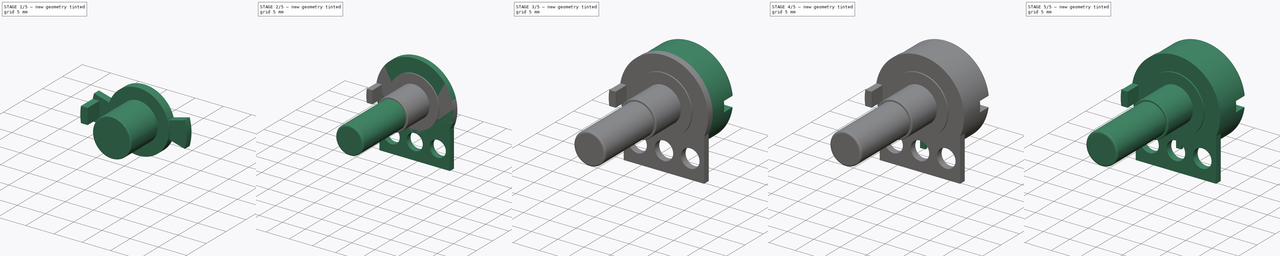
[diagram: build sequence overview — one tinted view per stage of 5, left to right]
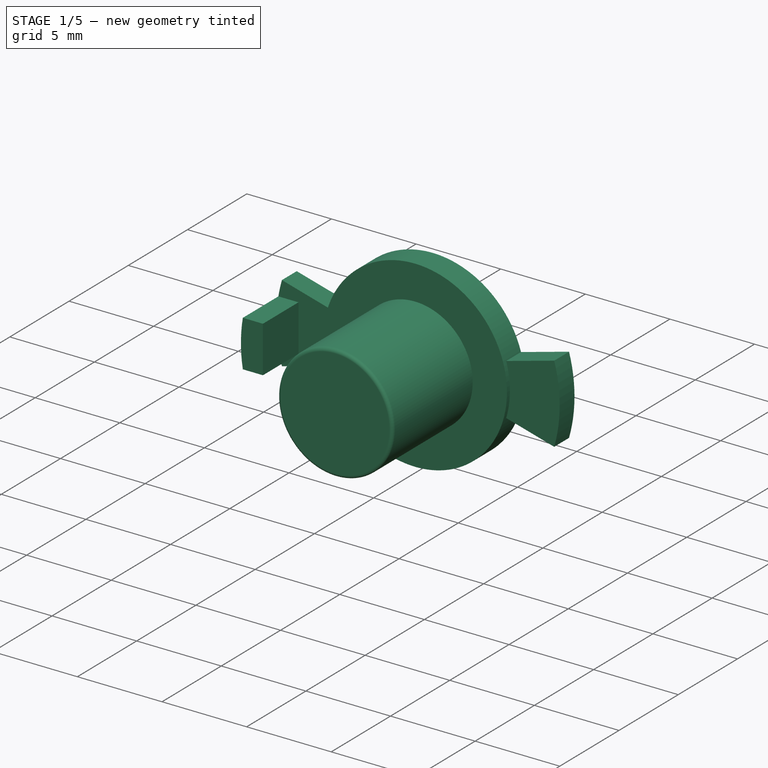
[diagram: stage 1 of 5 — iso view after this stage's code; geometry added in this stage tinted green]
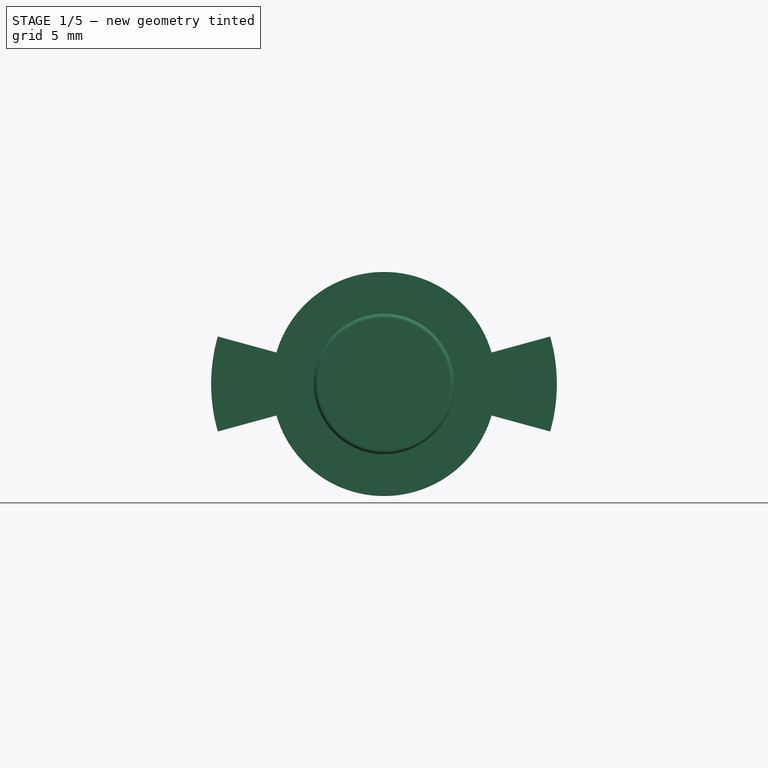
[diagram: stage 1 of 5 — front view after this stage's code; geometry added in this stage tinted green]
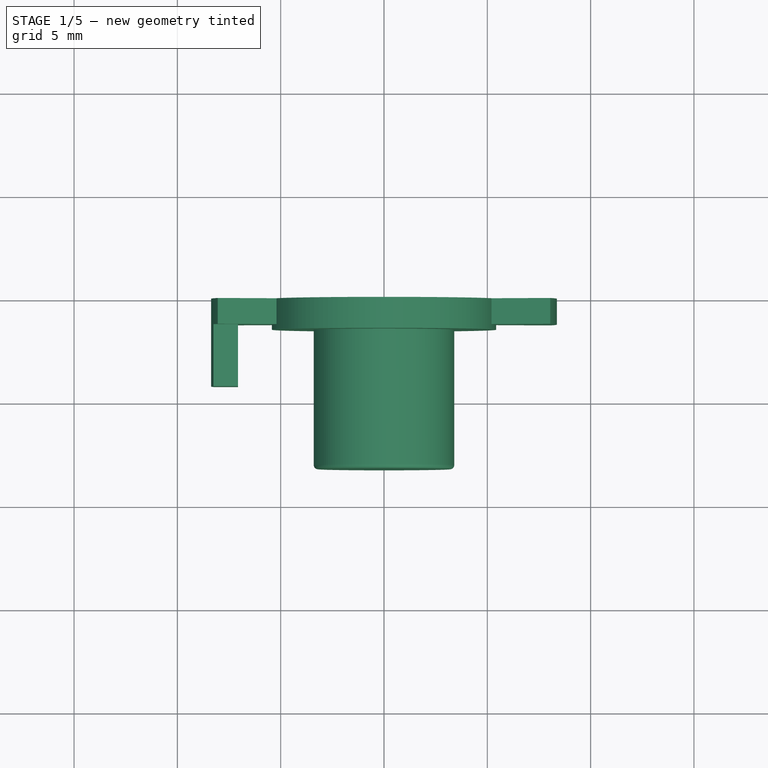
[diagram: stage 1 of 5 — top view after this stage's code; geometry added in this stage tinted green]
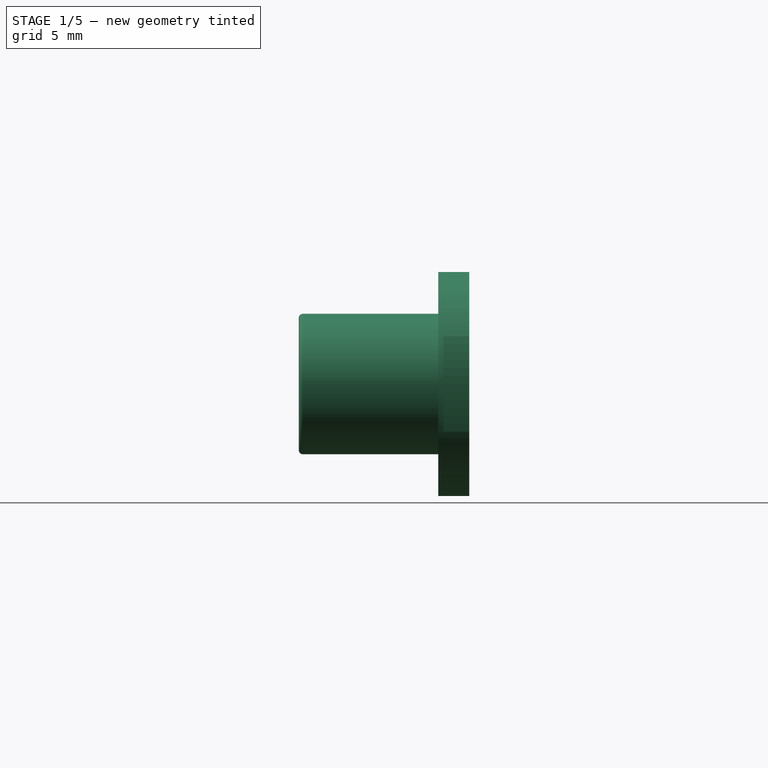
[diagram: stage 1 of 5 — right view after this stage's code; geometry added in this stage tinted green]
FCSTD DOCUMENT  (FreeCAD 0.18R4 (GitTag))
Label: Pot
License: All rights reserved
LicenseURL: http://en.wikipedia.org/wiki/All_rights_reserved
objects: Sketcher::SketchObject×16, PartDesign::Pad×14, PartDesign::Body×9, PartDesign::Fillet×6, PartDesign::Pocket×2, Part::Cut×1, App::Part×1
note: 64 computed .brp shape members not serialized (recipe doc carries the construction recipe); baked Part::Feature solids carry a one-line shape summary decoded from their .brp

FEATURE [PartDesign::Body] Body001  label="PCB"
  Group = -> [Sketch002,Pad001,Sketch010,Pocket001]
  Origin = -> Origin002
  Tip = -> Pocket001
FEATURE [Sketcher::SketchObject] Sketch011
  MapMode = 5
  Placement = pos=(0,0,0) rot=(1,0,0;1.5708rad)
  Support = -> [XZ_Plane007]
  sketch-geometry (1):
    g0: Circle CenterX=0 CenterY=0 CenterZ=0 NormalX=0 NormalY=0 NormalZ=1 AngleXU=0 Radius=3.4
  constraints (2):
    c: Diameter(g0) = 6.8
    c: Coincident(g0,g-1)
FEATURE [PartDesign::Pad] Pad009
  Length = 8.25
  Length2 = 100
  Placement = pos=(0,0,0) rot=(1,0,0;1.5708rad)
  Profile = -> Sketch011
  Type = 0
FEATURE [PartDesign::Fillet] Fillet004
  Base = -> Pad009 [Face3]
  BaseFeature = -> Pad009
  Placement = pos=(0,0,0) rot=(1,0,0;1.5708rad)
  Radius = 0.2
FEATURE [PartDesign::Body] Body006  label="Shaft"
  Group = -> [Sketch011,Pad009,Fillet004,Sketch012,Pad010,Fillet005]
  Origin = -> Origin007
  Placement = pos=(0,-1.25,0) rot=(0,0,1;0rad)
  Tip = -> Fillet005
FEATURE [Sketcher::SketchObject] Sketch013
  MapMode = 5
  Placement = pos=(0,0,0) rot=(1,0,0;1.5708rad)
  Support = -> [XZ_Plane008]
  sketch-geometry (1):
    g0: Circle CenterX=0 CenterY=0 CenterZ=0 NormalX=0 NormalY=0 NormalZ=1 AngleXU=0 Radius=5.425
  constraints (2):
    c: Diameter(g0) = 10.85
    c: Coincident(g0,g-1)
FEATURE [PartDesign::Pad] Pad011
  Length = 1.5
  Length2 = 100
  Placement = pos=(0,0,0) rot=(1,0,0;1.5708rad)
  Profile = -> Sketch013
  Type = 0
FEATURE [PartDesign::Body] Body007  label="Round stuff"
  Group = -> [Sketch013,Pad011]
  Origin = -> Origin008
  Placement = pos=(0,-1.25,0) rot=(0,0,1;0rad)
  Tip = -> Pad011
FEATURE [Sketcher::SketchObject] Sketch014
  MapMode = 5
  Placement = pos=(0,0,0) rot=(1,0,0;1.5708rad)
  Support = -> [XZ_Plane009]
  sketch-geometry (6):
    g0: LineSegment StartX=-8.0446 StartY=2.3 StartZ=0 EndX=0 EndY=0.1 EndZ=0
    g1: LineSegment StartX=0 StartY=0.1 StartZ=0 EndX=8.0446 EndY=2.3 EndZ=0
    g2: LineSegment StartX=8.0446 StartY=-2.3 StartZ=0 EndX=0 EndY=-0.1 EndZ=0
    g3: LineSegment StartX=0 StartY=-0.1 StartZ=0 EndX=-8.0446 EndY=-2.3 EndZ=0
    g4: ArcOfCircle CenterX=-0.0083879 CenterY=-2.8e-15 CenterZ=0 NormalX=0 NormalY=0 NormalZ=1 AngleXU=0 Radius=8.375 StartAngle=6.00498 EndAngle=6.56139
    g5: ArcOfCircle CenterX=0.0083879 CenterY=-2.5e-15 CenterZ=0 NormalX=0 NormalY=0 NormalZ=1 AngleXU=0 Radius=8.375 StartAngle=2.86339 EndAngle=3.41979
  constraints (19):
    c: Coincident(g0,g1)
    c: Coincident(g2,g3)
    c: Equal(g1,g0)
    c: Equal(g2,g3)
    c: Equal(g0,g3)
    c: Vertical(g0,g3)
    c: DistanceY(g3,g0) = 4.6
    c: Horizontal(g1,g0)
    c: Horizontal(g2,g3)
    c: Coincident(g4,g1)
    c: Distance(g0) = 8.34
    c: Diameter(g4) = 16.75
    c: Diameter(g5) = 16.75
    c: Coincident(g5,g0)
    c: Coincident(g3,g5)
    c: Coincident(g2,g4)
    c: Vertical(g2,g0)
    c: Symmetric(g0,g2,g-1)
    c: DistanceY(g-1,g0) = 0.1
FEATURE [PartDesign::Pad] Pad012
  Length = 1.25
  Length2 = 100
  Placement = pos=(0,0,0) rot=(1,0,0;1.5708rad)
  Profile = -> Sketch014
  Type = 0
FEATURE [Sketcher::SketchObject] Sketch015
  ExternalGeometry = -> [Pad012]
  MapMode = 5
  Placement = pos=(0,-1.25,8e-16) rot=(1,0,0;1.5708rad)
  Support = -> [Pad012]
  sketch-geometry (6):
    g0: LineSegment StartX=-8.25297 StartY=1.375 StartZ=0 EndX=-7.06661 EndY=1.375 EndZ=0
    g1: LineSegment StartX=-7.06661 StartY=-1.375 StartZ=0 EndX=-8.25297 EndY=-1.375 EndZ=0
    g2: ArcOfCircle CenterX=0.0083879 CenterY=-1e-14 CenterZ=0 NormalX=0 NormalY=0 NormalZ=1 AngleXU=0 Radius=8.375 StartAngle=2.97667 EndAngle=3.30652
    g3: LineSegment StartX=-7.06661 StartY=1.375 StartZ=0 EndX=-7.06661 EndY=0 EndZ=0
    g4: LineSegment StartX=-7.06661 StartY=-1.375 StartZ=0 EndX=-7.06661 EndY=0 EndZ=0
    g5: GeomPoint X=-8.36661 Y=0 Z=0
  constraints (19):
    c: Coincident(g4,g3)
    c: Coincident(g4,g1)
    c: Coincident(g3,g0)
    c: Vertical(g3)
    c: Vertical(g4)
    c: Equal(g3,g4)
    c: Horizontal(g3,g-1)
    c: Horizontal(g1)
    c: Horizontal(g0)
    c: Coincident(g2,g1)
    c: Coincident(g0,g2)
    c: PointOnObject(g0,g-3)
    c: PointOnObject(g1,g-3)
    c: Diameter(g-3) = 16.75
    c: Diameter(g2) = 16.75
    c: DistanceY(g1,g0) = 2.75
    c: Horizontal(g5,g3)
    c: PointOnObject(g5,g2)
    c: DistanceX(g5,g1) = 1.3
FEATURE [PartDesign::Pad] Pad013
  BaseFeature = -> Pad012
  Length = 3
  Length2 = 100
  Placement = pos=(0,0,0) rot=(1,0,0;1.5708rad)
  Profile = -> Sketch015
  Type = 0
FEATURE [PartDesign::Body] Body008  label="Ears"
  Group = -> [Sketch014,Pad012,Sketch015,Pad013]
  Origin = -> Origin009
  Placement = pos=(0,-1.25,0) rot=(0,0,1;0rad)
  Tip = -> Pad013
FEATURE [App::Part] Part  label="Pot"
  Group = -> [Body,Body001,Body002,Body003,Body004,Body005,Cut,Body006,Body007,Body008]
  Origin = -> Origin
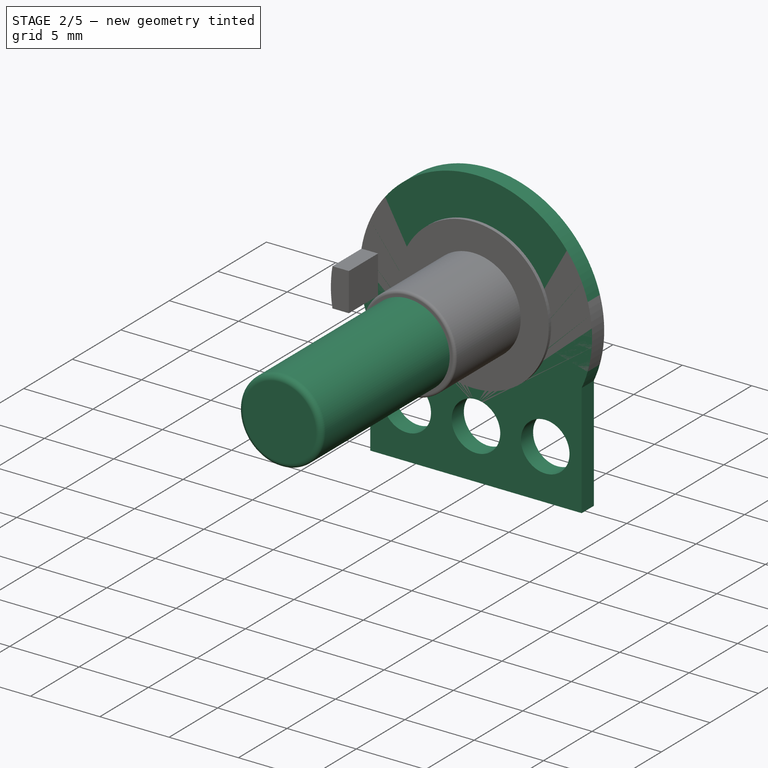
[diagram: stage 2 of 5 — iso view after this stage's code; geometry added in this stage tinted green]
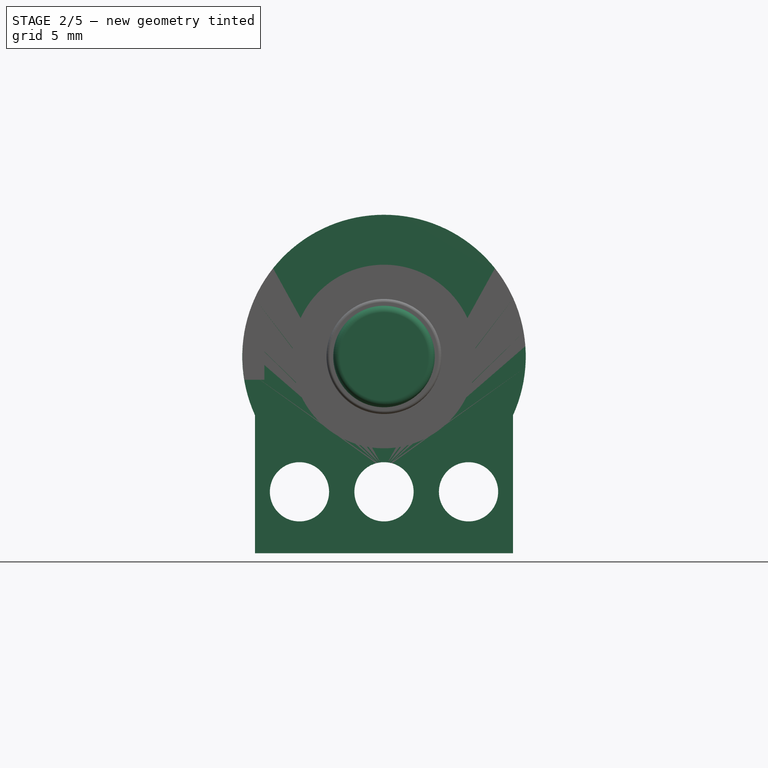
[diagram: stage 2 of 5 — front view after this stage's code; geometry added in this stage tinted green]
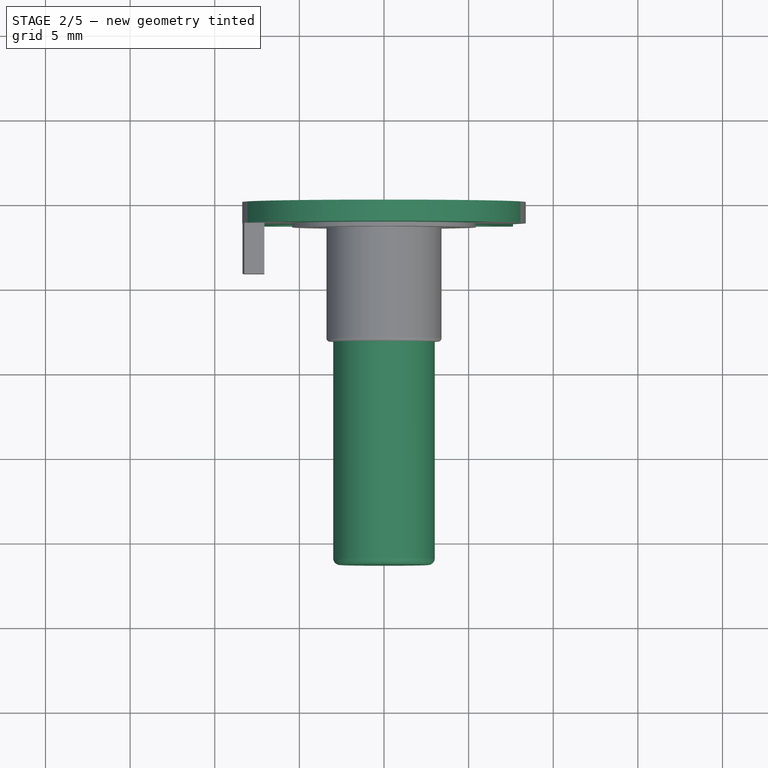
[diagram: stage 2 of 5 — top view after this stage's code; geometry added in this stage tinted green]
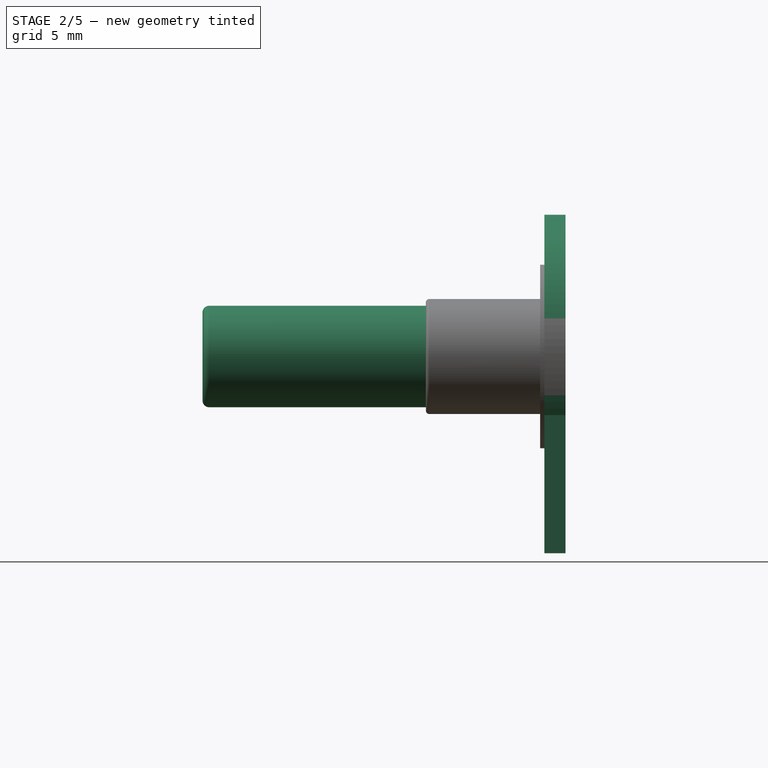
[diagram: stage 2 of 5 — right view after this stage's code; geometry added in this stage tinted green]
FEATURE [PartDesign::Body] Body  label="Cover"
  Group = -> [Sketch,Pad,Sketch001,Pocket,Fillet]
  Origin = -> Origin001
  Placement = pos=(0,6,0) rot=(0,0,1;0rad)
  Tip = -> Fillet
FEATURE [Sketcher::SketchObject] Sketch002
  MapMode = 5
  Placement = pos=(0,0,0) rot=(1,0,0;1.5708rad)
  Support = -> [XZ_Plane002]
  sketch-geometry (5):
    g0: LineSegment StartX=-7.625 StartY=-3.4641 StartZ=0 EndX=-7.625 EndY=-11.625 EndZ=0
    g1: LineSegment StartX=-7.625 StartY=-11.625 StartZ=0 EndX=7.625 EndY=-11.625 EndZ=0
    g2: LineSegment StartX=7.625 StartY=-11.625 StartZ=0 EndX=7.625 EndY=-3.4641 EndZ=0
    g3: ArcOfCircle CenterX=0 CenterY=0 CenterZ=0 NormalX=0 NormalY=0 NormalZ=1 AngleXU=0 Radius=8.375 StartAngle=5.85675 EndAngle=9.85121
    g4: GeomPoint X=0 Y=8.375 Z=0
  constraints (14):
    c: Coincident(g0,g1)
    c: Coincident(g1,g2)
    c: Diameter(g3) = 16.75
    c: Vertical(g0)
    c: Vertical(g2)
    c: Horizontal(g1)
    c: Equal(g2,g0)
    c: Coincident(g3,g0)
    c: Coincident(g3,g2)
    c: DistanceX(g1,g1) = 15.25
    c: Coincident(g-1,g3)
    c: DistanceX(g3,g4) = 0
    c: PointOnObject(g4,g3)
    c: DistanceY(g1,g4) = 20
FEATURE [PartDesign::Pad] Pad001
  Length = 1.25
  Length2 = 100
  Placement = pos=(0,0,0) rot=(1,0,0;1.5708rad)
  Profile = -> Sketch002
  Type = 0
FEATURE [Sketcher::SketchObject] Sketch010
  ExternalGeometry = -> [Pad001]
  MapMode = 5
  Placement = pos=(0,-1.25,8e-16) rot=(1,0,0;1.5708rad)
  Support = -> [Pad001]
  sketch-geometry (3):
    g0: Circle CenterX=-4.995 CenterY=-7.995 CenterZ=0 NormalX=0 NormalY=0 NormalZ=1 AngleXU=0 Radius=1.75
    g1: Circle CenterX=0 CenterY=-7.995 CenterZ=0 NormalX=0 NormalY=0 NormalZ=1 AngleXU=0 Radius=1.75
    g2: Circle CenterX=4.995 CenterY=-7.995 CenterZ=0 NormalX=0 NormalY=0 NormalZ=1 AngleXU=0 Radius=1.75
  constraints (8):
    c: Diameter(g0) = 3.5
    c: DistanceY(g-4,g0) = 3.63
    c: Equal(g0,g1) = 3.5
    c: DistanceX(g1,g-1) = 0
    c: Horizontal(g1,g0)
    c: Equal(g0,g2) = 3.5
    c: Symmetric(g2,g0,g1)
    c: DistanceX(g-4,g0) = 2.63
FEATURE [PartDesign::Pocket] Pocket001
  BaseFeature = -> Pad001
  Length = 5
  Length2 = 100
  Placement = pos=(0,0,0) rot=(1,0,0;1.5708rad)
  Profile = -> Sketch010
  Type = 0
FEATURE [Sketcher::SketchObject] Sketch012
  MapMode = 5
  Placement = pos=(0,-8.25,5.5e-15) rot=(1,0,0;1.5708rad)
  Support = -> [Fillet004]
  sketch-geometry (1):
    g0: Circle CenterX=0 CenterY=0 CenterZ=0 NormalX=0 NormalY=0 NormalZ=1 AngleXU=0 Radius=3
  constraints (2):
    c: Diameter(g0) = 6
    c: Coincident(g0,g-1)
FEATURE [PartDesign::Pad] Pad010
  BaseFeature = -> Fillet004
  Length = 13.2
  Length2 = 100
  Placement = pos=(0,0,0) rot=(1,0,0;1.5708rad)
  Profile = -> Sketch012
  Type = 0
FEATURE [PartDesign::Fillet] Fillet005
  Base = -> Pad010 [Face6]
  BaseFeature = -> Pad010
  Placement = pos=(0,0,0) rot=(1,0,0;1.5708rad)
  Radius = 0.4
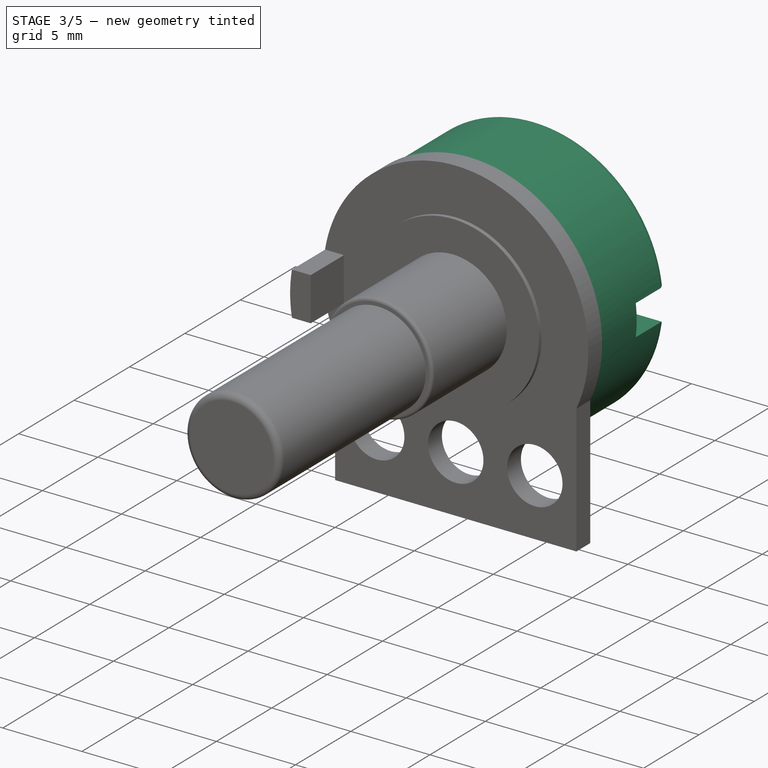
[diagram: stage 3 of 5 — iso view after this stage's code; geometry added in this stage tinted green]
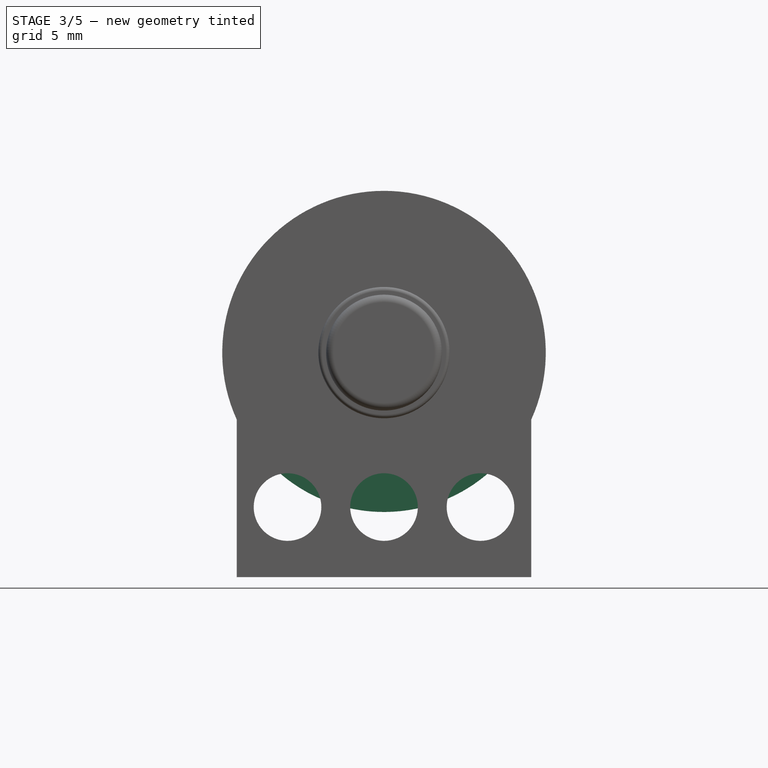
[diagram: stage 3 of 5 — front view after this stage's code; geometry added in this stage tinted green]
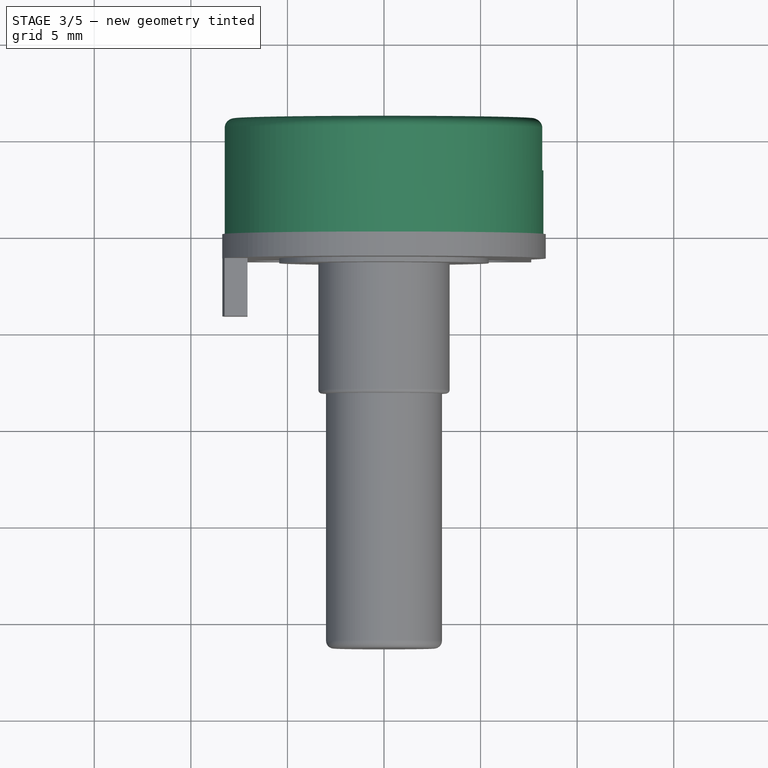
[diagram: stage 3 of 5 — top view after this stage's code; geometry added in this stage tinted green]
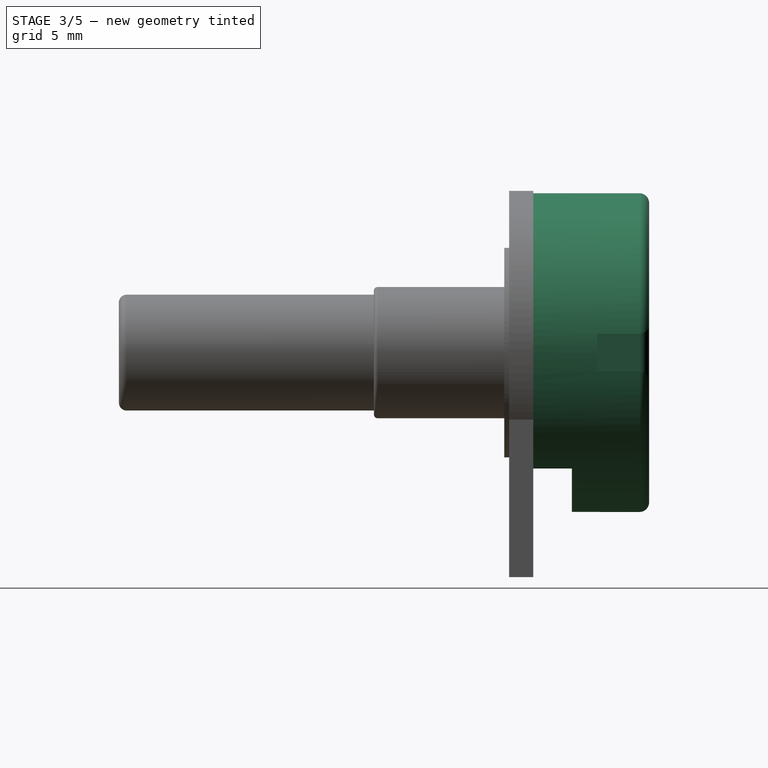
[diagram: stage 3 of 5 — right view after this stage's code; geometry added in this stage tinted green]
FEATURE [Sketcher::SketchObject] Sketch
  MapMode = 5
  Placement = pos=(0,0,0) rot=(1,0,0;1.5708rad)
  Support = -> [XZ_Plane001]
  sketch-geometry (1):
    g0: Circle CenterX=0 CenterY=0 CenterZ=0 NormalX=0 NormalY=0 NormalZ=1 AngleXU=0 Radius=8.25
  constraints (2):
    c: Diameter(g0) = 16.5
    c: Coincident(g0,g-1)
FEATURE [PartDesign::Pad] Pad
  Length = 6
  Length2 = 100
  Placement = pos=(0,0,0) rot=(1,0,0;1.5708rad)
  Profile = -> Sketch
  Type = 0
FEATURE [Sketcher::SketchObject] Sketch001
  ExternalGeometry = -> [Pad]
  MapMode = 5
  Placement = pos=(0,0,0) rot=(-1,0,0;1.5708rad)
  Support = -> [Pad]
  sketch-geometry (5):
    g0: LineSegment StartX=6.35 StartY=0.975 StartZ=0 EndX=8.25 EndY=0.975 EndZ=0
    g1: LineSegment StartX=8.25 StartY=0.975 StartZ=0 EndX=8.25 EndY=-0.975 EndZ=0
    g2: LineSegment StartX=8.25 StartY=-0.975 StartZ=0 EndX=6.35 EndY=-0.975 EndZ=0
    g3: LineSegment StartX=6.35 StartY=0.975 StartZ=0 EndX=6.35 EndY=0 EndZ=0
    g4: LineSegment StartX=6.35 StartY=-0.975 StartZ=0 EndX=6.35 EndY=0 EndZ=0
  constraints (14):
    c: Coincident(g0,g1)
    c: Coincident(g1,g2)
    c: Horizontal(g0)
    c: Horizontal(g2)
    c: Vertical(g1)
    c: Coincident(g4,g3)
    c: Coincident(g3,g0)
    c: Coincident(g4,g2)
    c: Vertical(g4)
    c: Symmetric(g0,g2,g3)
    c: DistanceY(g1,g1) = 1.95
    c: DistanceX(g0,g0) = 1.9
    c: Tangent(g1,g-3)
    c: DistanceY(g-3,g3) = 0
FEATURE [PartDesign::Pocket] Pocket
  BaseFeature = -> Pad
  Length = 2.7
  Length2 = 100
  Placement = pos=(0,0,0) rot=(1,0,0;1.5708rad)
  Profile = -> Sketch001
  Type = 0
FEATURE [PartDesign::Fillet] Fillet
  Base = -> Pocket [Face4]
  BaseFeature = -> Pocket
  Placement = pos=(0,0,0) rot=(1,0,0;1.5708rad)
  Radius = 0.5
FEATURE [PartDesign::Body] Body004  label="Pin 3"
  Group = -> [Sketch007,Pad006,Sketch008,Pad007,Fillet003]
  Origin = -> Origin005
  Placement = pos=(5,0.5,-8) rot=(0,0,1;0rad)
  Tip = -> Fillet003
FEATURE [Sketcher::SketchObject] Sketch009
  MapMode = 5
  Support = -> [XY_Plane006]
  sketch-geometry (4):
    g0: LineSegment StartX=-7 StartY=2 StartZ=0 EndX=7 EndY=2 EndZ=0
    g1: LineSegment StartX=7 StartY=2 StartZ=0 EndX=7 EndY=0 EndZ=0
    g2: LineSegment StartX=7 StartY=0 StartZ=0 EndX=-7 EndY=0 EndZ=0
    g3: LineSegment StartX=-7 StartY=0 StartZ=0 EndX=-7 EndY=2 EndZ=0
  constraints (11):
    c: Coincident(g0,g1)
    c: Coincident(g1,g2)
    c: Coincident(g2,g3)
    c: Coincident(g3,g0)
    c: Horizontal(g0)
    c: Horizontal(g2)
    c: Vertical(g1)
    c: Vertical(g3)
    c: DistanceX(g0,g0) = 14
    c: DistanceY(g3,g3) = 2
    c: Symmetric(g1,g2,g-1)
FEATURE [PartDesign::Pad] Pad008
  Length = 3
  Length2 = 100
  Profile = -> Sketch009
  Type = 0
FEATURE [PartDesign::Body] Body005  label="Hole"
  Group = -> [Sketch009,Pad008]
  Origin = -> Origin006
  Placement = pos=(0,0,-9) rot=(0,0,1;0rad)
  Tip = -> Pad008
FEATURE [Part::Cut] Cut  label="Metal case"
  Base = -> Body
  Tool = -> Body005
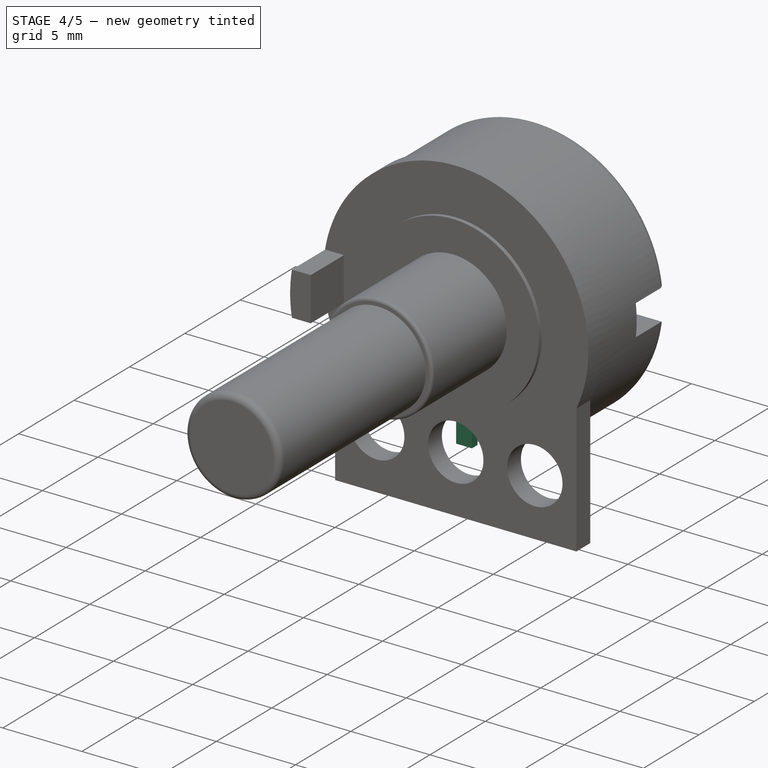
[diagram: stage 4 of 5 — iso view after this stage's code; geometry added in this stage tinted green]
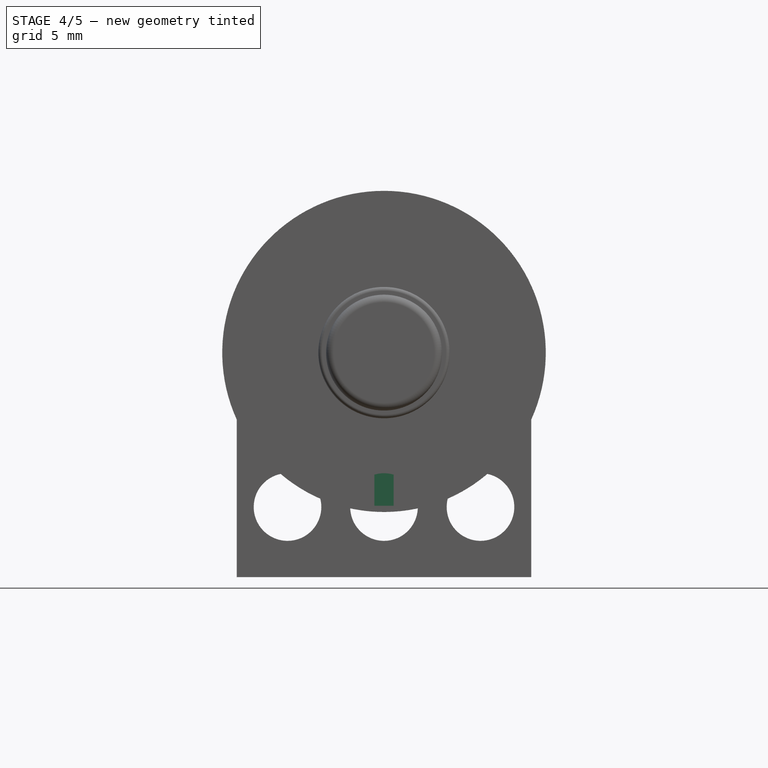
[diagram: stage 4 of 5 — front view after this stage's code; geometry added in this stage tinted green]
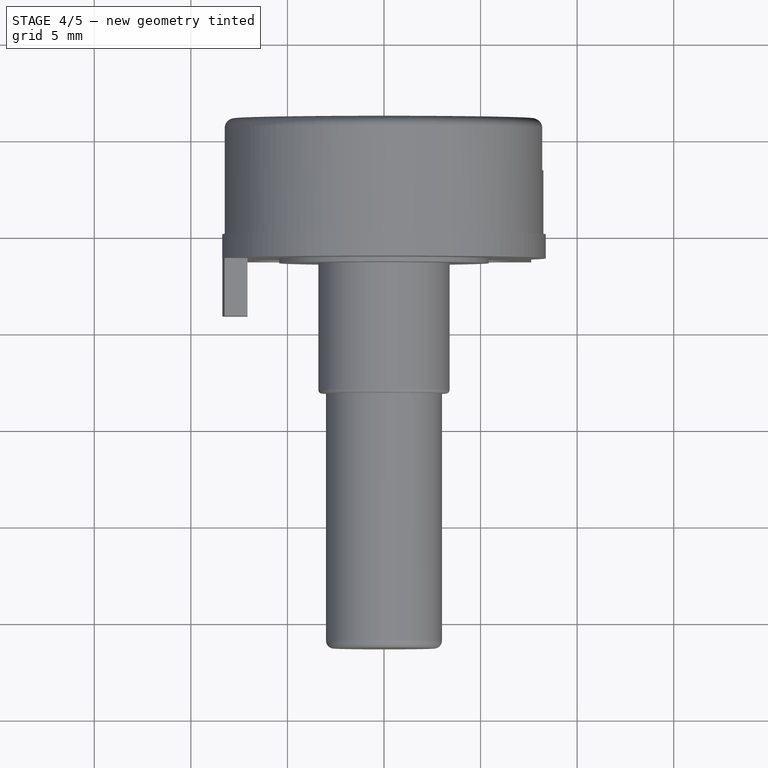
[diagram: stage 4 of 5 — top view after this stage's code; geometry added in this stage tinted green]
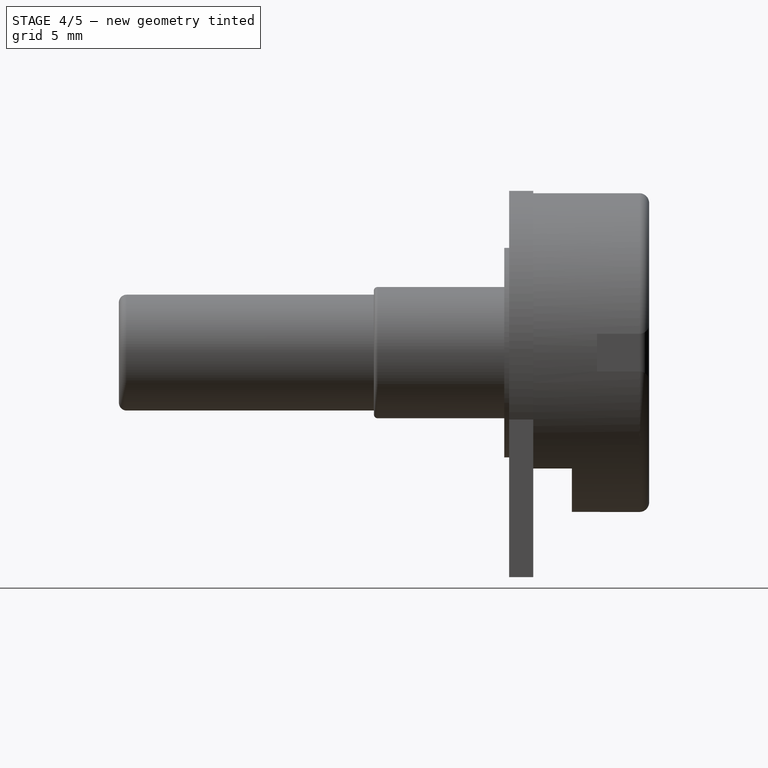
[diagram: stage 4 of 5 — right view after this stage's code; geometry added in this stage tinted green]
FEATURE [PartDesign::Body] Body002  label="Pin 1"
  Group = -> [Sketch003,Pad002,Sketch004,Pad003,Fillet001]
  Origin = -> Origin003
  Placement = pos=(-5,0.5,-8) rot=(0,0,1;0rad)
  Tip = -> Fillet001
FEATURE [Sketcher::SketchObject] Sketch005
  MapMode = 5
  Placement = pos=(0,0,0) rot=(1,0,0;1.5708rad)
  Support = -> [XZ_Plane004]
  sketch-geometry (10):
    g0: LineSegment StartX=1.775 StartY=-2e-16 StartZ=0 EndX=1.775 EndY=-4.225 EndZ=0
    g1: LineSegment StartX=1.775 StartY=-4.225 StartZ=0 EndX=0.5 EndY=-3.925 EndZ=0
    g2: LineSegment StartX=0.5 StartY=-3.925 StartZ=0 EndX=0.5 EndY=-7.925 EndZ=0
    g3: LineSegment StartX=0.5 StartY=-7.925 StartZ=0 EndX=-0.5 EndY=-7.925 EndZ=0
    g4: LineSegment StartX=-0.5 StartY=-7.925 StartZ=0 EndX=-0.5 EndY=-3.925 EndZ=0
    g5: LineSegment StartX=-0.5 StartY=-3.925 StartZ=0 EndX=-1.775 EndY=-4.225 EndZ=0
    g6: LineSegment StartX=-1.775 StartY=-4.225 StartZ=0 EndX=-1.775 EndY=0 EndZ=0
    g7: ArcOfCircle CenterX=0 CenterY=0 CenterZ=0 NormalX=0 NormalY=0 NormalZ=1 AngleXU=0 Radius=1.775 StartAngle=0 EndAngle=3.14159
    g8: GeomPoint X=0 Y=1.775 Z=0
    g9: Circle CenterX=0 CenterY=0 CenterZ=0 NormalX=0 NormalY=0 NormalZ=1 AngleXU=0 Radius=1.15
  constraints (26):
    c: Coincident(g0,g1)
    c: Coincident(g1,g2)
    c: Coincident(g2,g3)
    c: Coincident(g3,g4)
    c: Coincident(g4,g5)
    c: Coincident(g5,g6)
    c: Vertical(g2)
    c: Vertical(g4)
    c: Vertical(g6)
    c: Vertical(g0)
    c: Horizontal(g3)
    c: DistanceX(g3,g3) = 1
    c: DistanceX(g5,g0) = 3.55
    c: Equal(g2,g4)
    c: Equal(g6,g0)
    c: Equal(g1,g5)
    c: Tangent(g7,g6) = 1.5708
    c: Tangent(g0,g7) = 1.5708
    c: DistanceX(g7,g8) = 0
    c: PointOnObject(g8,g7)
    c: DistanceY(g0,g8) = 6
    c: DistanceY(g2,g8) = 9.7
    c: DistanceY(g2,g2) = 4
    c: Coincident(g9,g7)
    c: Radius(g9) = 1.15
    c: Coincident(g7,g-1)
FEATURE [PartDesign::Pad] Pad004
  Length = 0.5
  Length2 = 100
  Placement = pos=(0,0,0) rot=(1,0,0;1.5708rad)
  Profile = -> Sketch005
  Type = 0
FEATURE [PartDesign::Body] Body003  label="Pin 2"
  Group = -> [Sketch005,Pad004,Sketch006,Pad005,Fillet002]
  Origin = -> Origin004
  Placement = pos=(0,0.5,-8) rot=(0,0,1;0rad)
  Tip = -> Fillet002
FEATURE [Sketcher::SketchObject] Sketch007
  MapMode = 5
  Placement = pos=(0,0,0) rot=(1,0,0;1.5708rad)
  Support = -> [XZ_Plane005]
  sketch-geometry (10):
    g0: LineSegment StartX=1.775 StartY=-2e-16 StartZ=0 EndX=1.775 EndY=-4.225 EndZ=0
    g1: LineSegment StartX=1.775 StartY=-4.225 StartZ=0 EndX=0.5 EndY=-3.925 EndZ=0
    g2: LineSegment StartX=0.5 StartY=-3.925 StartZ=0 EndX=0.5 EndY=-7.925 EndZ=0
    g3: LineSegment StartX=0.5 StartY=-7.925 StartZ=0 EndX=-0.5 EndY=-7.925 EndZ=0
    g4: LineSegment StartX=-0.5 StartY=-7.925 StartZ=0 EndX=-0.5 EndY=-3.925 EndZ=0
    g5: LineSegment StartX=-0.5 StartY=-3.925 StartZ=0 EndX=-1.775 EndY=-4.225 EndZ=0
    g6: LineSegment StartX=-1.775 StartY=-4.225 StartZ=0 EndX=-1.775 EndY=0 EndZ=0
    g7: ArcOfCircle CenterX=0 CenterY=0 CenterZ=0 NormalX=0 NormalY=0 NormalZ=1 AngleXU=0 Radius=1.775 StartAngle=0 EndAngle=3.14159
    g8: GeomPoint X=0 Y=1.775 Z=0
    g9: Circle CenterX=0 CenterY=0 CenterZ=0 NormalX=0 NormalY=0 NormalZ=1 AngleXU=0 Radius=1.15
  constraints (26):
    c: Coincident(g0,g1)
    c: Coincident(g1,g2)
    c: Coincident(g2,g3)
    c: Coincident(g3,g4)
    c: Coincident(g4,g5)
    c: Coincident(g5,g6)
    c: Vertical(g2)
    c: Vertical(g4)
    c: Vertical(g6)
    c: Vertical(g0)
    c: Horizontal(g3)
    c: DistanceX(g3,g3) = 1
    c: DistanceX(g5,g0) = 3.55
    c: Equal(g2,g4)
    c: Equal(g6,g0)
    c: Equal(g1,g5)
    c: Tangent(g7,g6) = 1.5708
    c: Tangent(g0,g7) = 1.5708
    c: DistanceX(g7,g8) = 0
    c: PointOnObject(g8,g7)
    c: DistanceY(g0,g8) = 6
    c: DistanceY(g2,g8) = 9.7
    c: DistanceY(g2,g2) = 4
    c: Coincident(g9,g7)
    c: Radius(g9) = 1.15
    c: Coincident(g7,g-1)
FEATURE [PartDesign::Pad] Pad006
  Length = 0.5
  Length2 = 100
  Placement = pos=(0,0,0) rot=(1,0,0;1.5708rad)
  Profile = -> Sketch007
  Type = 0
FEATURE [Sketcher::SketchObject] Sketch008
  ExternalGeometry = -> [Pad006]
  MapMode = 5
  Placement = pos=(0,-0.5,2e-16) rot=(1,0,0;1.5708rad)
  Support = -> [Pad006]
  sketch-geometry (2):
    g0: Circle CenterX=0 CenterY=0 CenterZ=0 NormalX=0 NormalY=0 NormalZ=1 AngleXU=0 Radius=1.775
    g1: Circle CenterX=0 CenterY=0 CenterZ=0 NormalX=0 NormalY=0 NormalZ=1 AngleXU=0 Radius=1.15
  constraints (4):
    c: Coincident(g0,g-1)
    c: Tangent(g-3,g0) = -1.5708
    c: Coincident(g1,g0)
    c: Tangent(g1,g-4)
FEATURE [PartDesign::Pad] Pad007
  BaseFeature = -> Pad006
  Length = 1.75
  Length2 = 100
  Placement = pos=(0,0,0) rot=(1,0,0;1.5708rad)
  Profile = -> Sketch008
  Type = 0
FEATURE [PartDesign::Fillet] Fillet003
  Base = -> Pad007 [Face13]
  BaseFeature = -> Pad007
  Placement = pos=(0,0,0) rot=(1,0,0;1.5708rad)
  Radius = 0.1
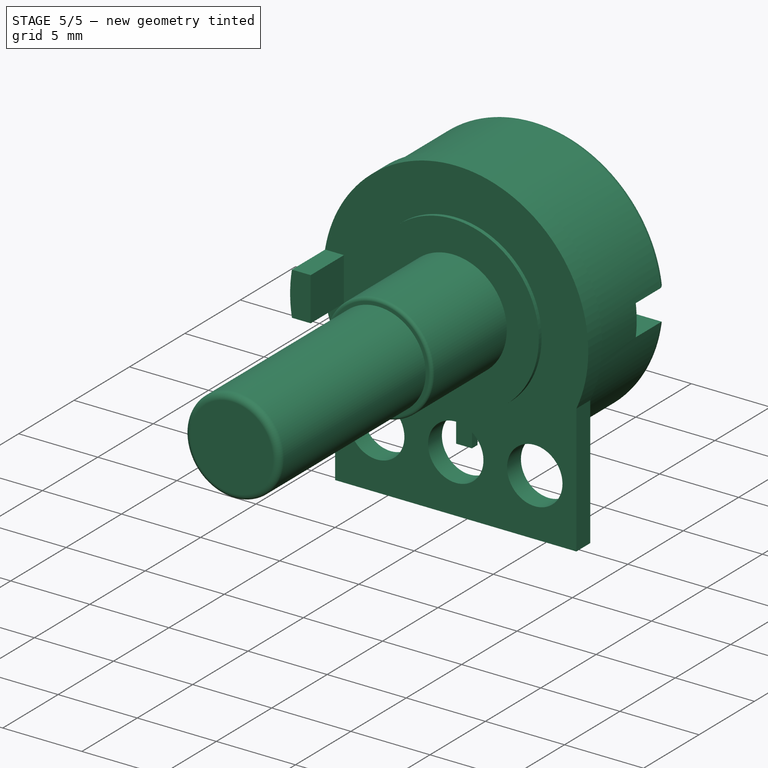
[diagram: stage 5 of 5 — iso view after this stage's code; geometry added in this stage tinted green]
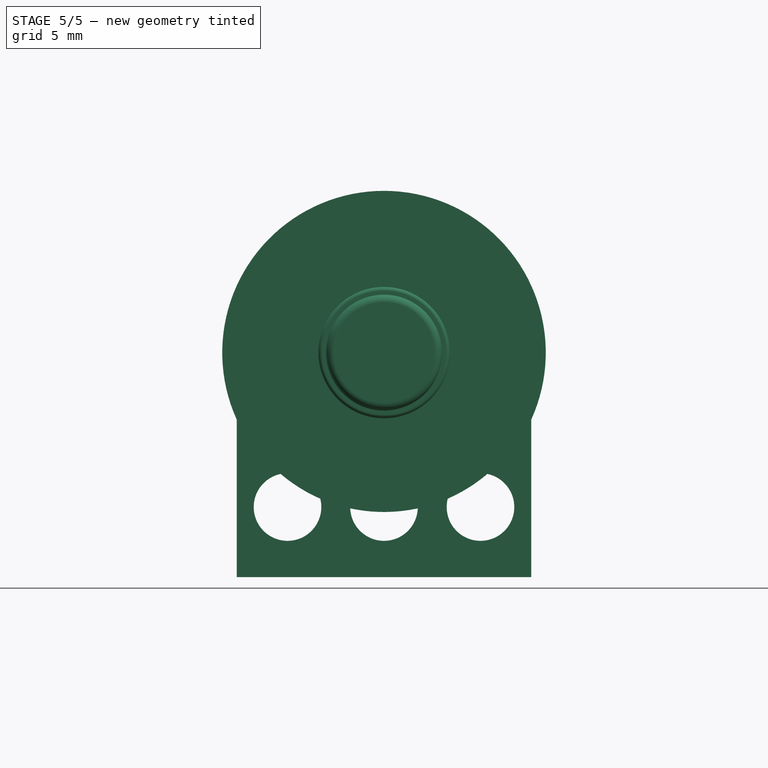
[diagram: stage 5 of 5 — front view after this stage's code; geometry added in this stage tinted green]
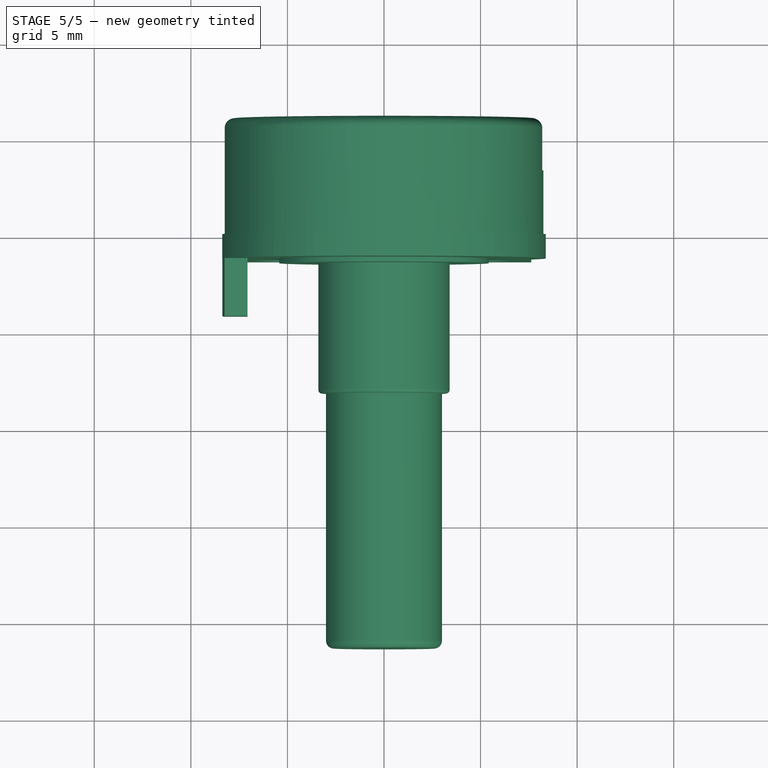
[diagram: stage 5 of 5 — top view after this stage's code; geometry added in this stage tinted green]
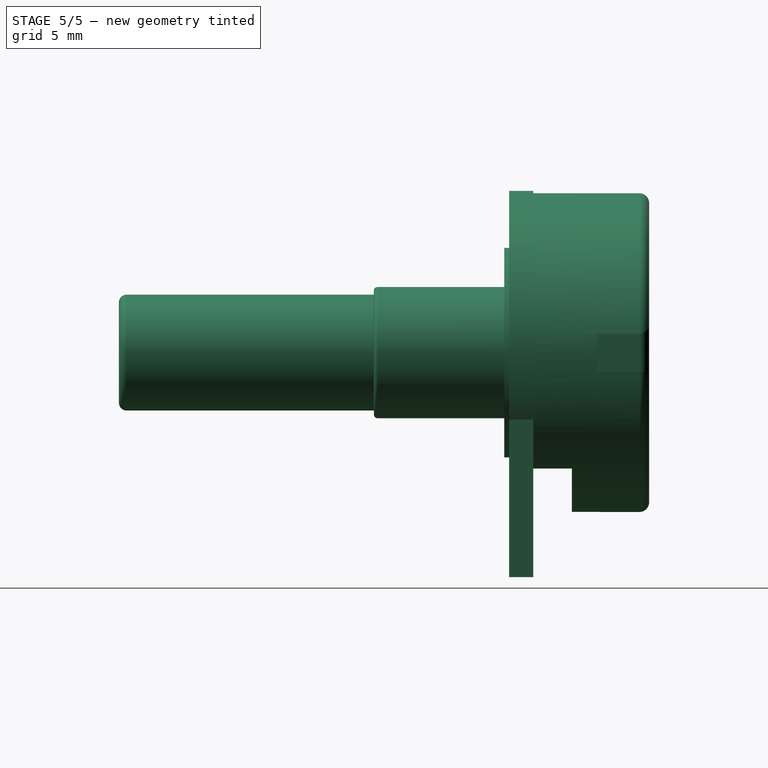
[diagram: stage 5 of 5 — right view after this stage's code; geometry added in this stage tinted green]
FEATURE [Sketcher::SketchObject] Sketch003
  MapMode = 5
  Placement = pos=(0,0,0) rot=(1,0,0;1.5708rad)
  Support = -> [XZ_Plane003]
  sketch-geometry (10):
    g0: LineSegment StartX=1.775 StartY=-2e-16 StartZ=0 EndX=1.775 EndY=-4.225 EndZ=0
    g1: LineSegment StartX=1.775 StartY=-4.225 StartZ=0 EndX=0.5 EndY=-3.925 EndZ=0
    g2: LineSegment StartX=0.5 StartY=-3.925 StartZ=0 EndX=0.5 EndY=-7.925 EndZ=0
    g3: LineSegment StartX=0.5 StartY=-7.925 StartZ=0 EndX=-0.5 EndY=-7.925 EndZ=0
    g4: LineSegment StartX=-0.5 StartY=-7.925 StartZ=0 EndX=-0.5 EndY=-3.925 EndZ=0
    g5: LineSegment StartX=-0.5 StartY=-3.925 StartZ=0 EndX=-1.775 EndY=-4.225 EndZ=0
    g6: LineSegment StartX=-1.775 StartY=-4.225 StartZ=0 EndX=-1.775 EndY=0 EndZ=0
    g7: ArcOfCircle CenterX=0 CenterY=0 CenterZ=0 NormalX=0 NormalY=0 NormalZ=1 AngleXU=0 Radius=1.775 StartAngle=0 EndAngle=3.14159
    g8: GeomPoint X=0 Y=1.775 Z=0
    g9: Circle CenterX=0 CenterY=0 CenterZ=0 NormalX=0 NormalY=0 NormalZ=1 AngleXU=0 Radius=1.15
  constraints (26):
    c: Coincident(g0,g1)
    c: Coincident(g1,g2)
    c: Coincident(g2,g3)
    c: Coincident(g3,g4)
    c: Coincident(g4,g5)
    c: Coincident(g5,g6)
    c: Vertical(g2)
    c: Vertical(g4)
    c: Vertical(g6)
    c: Vertical(g0)
    c: Horizontal(g3)
    c: DistanceX(g3,g3) = 1
    c: DistanceX(g5,g0) = 3.55
    c: Equal(g2,g4)
    c: Equal(g6,g0)
    c: Equal(g1,g5)
    c: Tangent(g7,g6) = 1.5708
    c: Tangent(g0,g7) = 1.5708
    c: DistanceX(g7,g8) = 0
    c: PointOnObject(g8,g7)
    c: DistanceY(g0,g8) = 6
    c: DistanceY(g2,g8) = 9.7
    c: DistanceY(g2,g2) = 4
    c: Coincident(g9,g7)
    c: Radius(g9) = 1.15
    c: Coincident(g7,g-1)
FEATURE [PartDesign::Pad] Pad002
  Length = 0.5
  Length2 = 100
  Placement = pos=(0,0,0) rot=(1,0,0;1.5708rad)
  Profile = -> Sketch003
  Type = 0
FEATURE [Sketcher::SketchObject] Sketch004
  ExternalGeometry = -> [Pad002]
  MapMode = 5
  Placement = pos=(0,-0.5,3e-16) rot=(1,0,0;1.5708rad)
  Support = -> [Pad002]
  sketch-geometry (2):
    g0: Circle CenterX=0 CenterY=0 CenterZ=0 NormalX=0 NormalY=0 NormalZ=1 AngleXU=0 Radius=1.775
    g1: Circle CenterX=0 CenterY=0 CenterZ=0 NormalX=0 NormalY=0 NormalZ=1 AngleXU=0 Radius=1.15
  constraints (4):
    c: Coincident(g0,g-1)
    c: Tangent(g-3,g0) = -1.5708
    c: Coincident(g1,g0)
    c: Tangent(g1,g-4)
FEATURE [PartDesign::Pad] Pad003
  BaseFeature = -> Pad002
  Length = 1.75
  Length2 = 100
  Placement = pos=(0,0,0) rot=(1,0,0;1.5708rad)
  Profile = -> Sketch004
  Type = 0
FEATURE [PartDesign::Fillet] Fillet001
  Base = -> Pad003 [Face13]
  BaseFeature = -> Pad003
  Placement = pos=(0,0,0) rot=(1,0,0;1.5708rad)
  Radius = 0.1
FEATURE [Sketcher::SketchObject] Sketch006
  ExternalGeometry = -> [Pad004]
  MapMode = 5
  Placement = pos=(0,-0.5,2e-16) rot=(1,0,0;1.5708rad)
  Support = -> [Pad004]
  sketch-geometry (2):
    g0: Circle CenterX=0 CenterY=0 CenterZ=0 NormalX=0 NormalY=0 NormalZ=1 AngleXU=0 Radius=1.775
    g1: Circle CenterX=0 CenterY=0 CenterZ=0 NormalX=0 NormalY=0 NormalZ=1 AngleXU=0 Radius=1.15
  constraints (4):
    c: Coincident(g0,g-1)
    c: Tangent(g-3,g0) = -1.5708
    c: Coincident(g1,g0)
    c: Tangent(g1,g-4)
FEATURE [PartDesign::Pad] Pad005
  BaseFeature = -> Pad004
  Length = 1.75
  Length2 = 100
  Placement = pos=(0,0,0) rot=(1,0,0;1.5708rad)
  Profile = -> Sketch006
  Type = 0
FEATURE [PartDesign::Fillet] Fillet002
  Base = -> Pad005 [Face13]
  BaseFeature = -> Pad005
  Placement = pos=(0,0,0) rot=(1,0,0;1.5708rad)
  Radius = 0.1
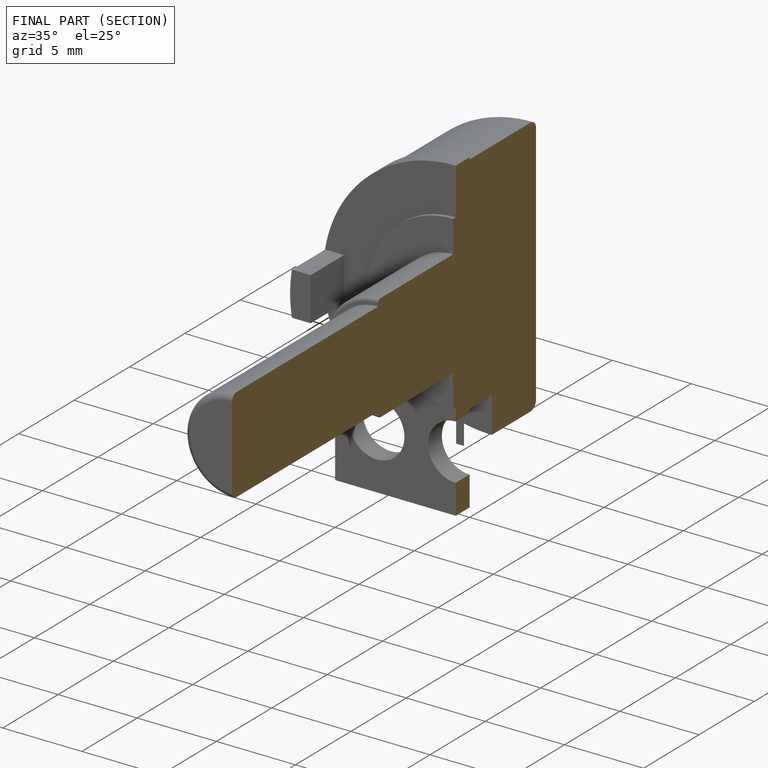
[diagram: finished part — half-section view (interior)]
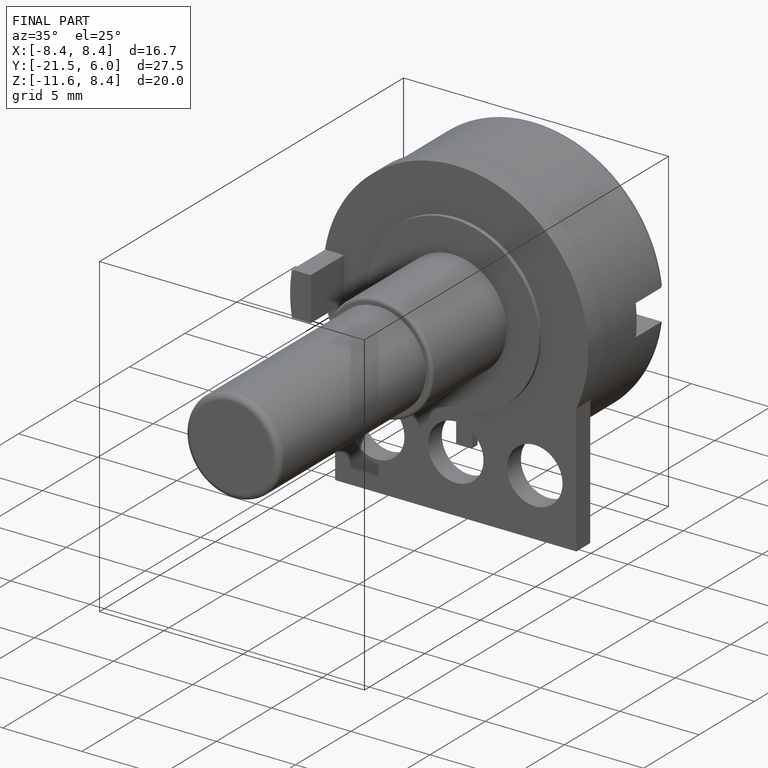
[diagram: finished part — iso view with bounding-box wireframe]
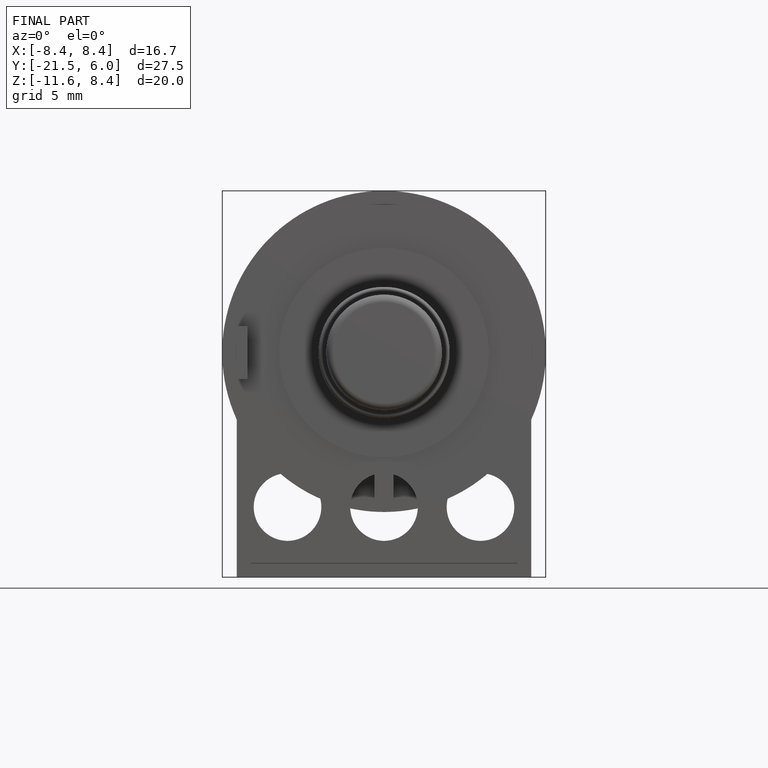
[diagram: finished part — front view with bounding-box wireframe]
